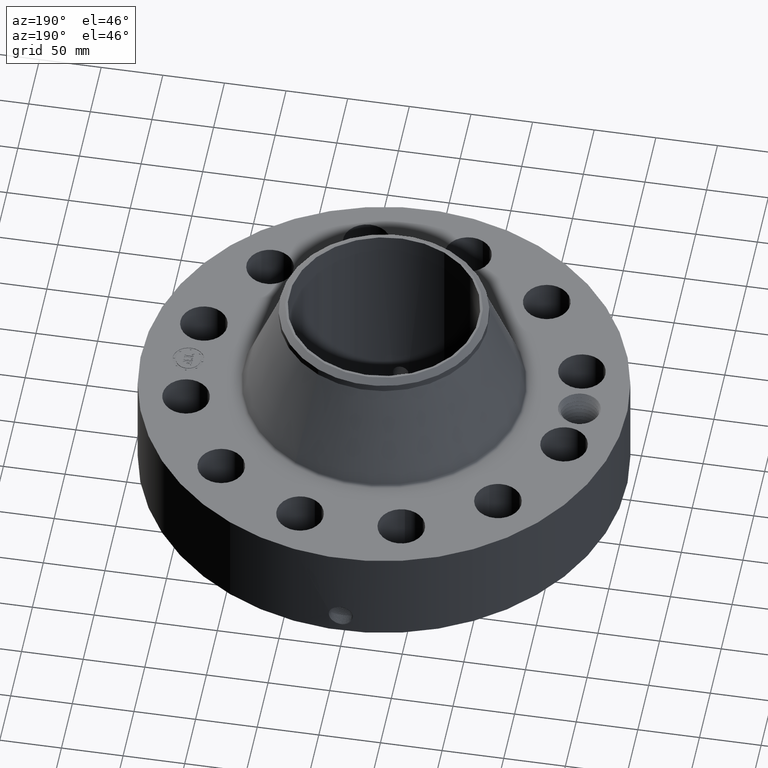
[diagram: clean part render]
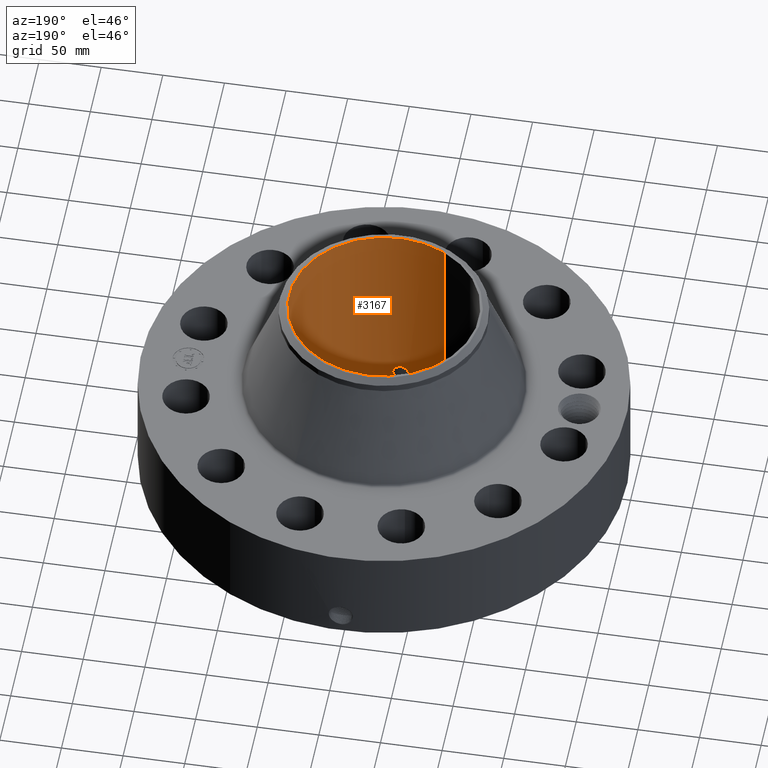
[diagram: same view with one face highlighted and labeled with its STEP entity id]
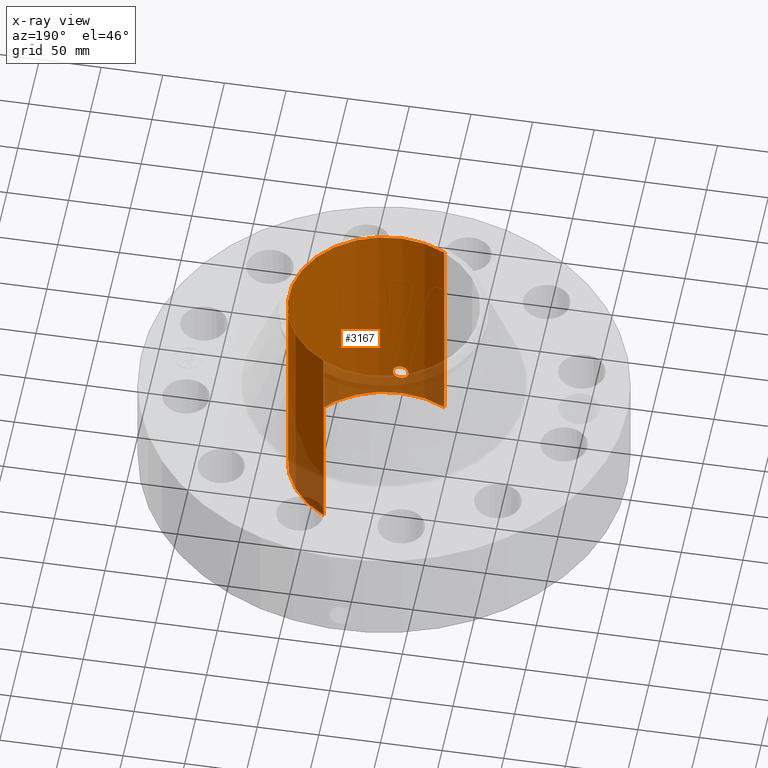
[diagram: x-ray of the same camera — body ghosted, the highlighted face saturated]
A machine part, auxiliary view. The second image highlights one B-rep face of the part: STEP entity #3167.
The next image is the same camera in x-ray: the body ghosted, the highlighted face saturated — about 19% of this face is hidden behind the body in this view.
In plain terms, the highlighted cylindrical surface (partial cylindrical patch) has radius 77.0255 mm, axis along (0, 0, -1).
Its self-contained STEP definition (entity closure, byte-faithful):
#2355=AXIS2_PLACEMENT_3D('Circle Axis2P3D',#2353,#2354,$) ;
#3098=AXIS2_PLACEMENT_3D('Cylinder Axis2P3D',#3095,#3096,#3097) ;
#3102=AXIS2_PLACEMENT_3D('Circle Axis2P3D',#3100,#3101,$) ;
#2353=CARTESIAN_POINT('Axis2P3D Location',(0.,0.,0.)) ;
#2357=CARTESIAN_POINT('Vertex',(1.45385794582,2.66126911894,-5.59482469102E-015)) ;
#2359=CARTESIAN_POINT('Vertex',(-1.45385794582,-2.66126911894,-5.59482469102E-015)) ;
#3095=CARTESIAN_POINT('Axis2P3D Location',(0.,0.,3.50000000001)) ;
#3100=CARTESIAN_POINT('Axis2P3D Location',(0.,0.,7.00000000003)) ;
#3104=CARTESIAN_POINT('Vertex',(1.45385794582,2.66126911894,7.00000000003)) ;
#3106=CARTESIAN_POINT('Vertex',(-1.45385794582,-2.66126911894,7.00000000003)) ;
#3109=CARTESIAN_POINT('Line Origine',(1.45385794582,2.66126911894,3.50000000001)) ;
#3114=CARTESIAN_POINT('Line Origine',(-1.45385794582,-2.66126911894,3.50000000001)) ;
#3126=CARTESIAN_POINT('Control Point',(0.219395640473,-3.02455315758,0.820143615352)) ;
#3127=CARTESIAN_POINT('Control Point',(0.206922263255,-3.0254579539,0.797311251506)) ;
#3128=CARTESIAN_POINT('Control Point',(0.191481219761,-3.02651338018,0.776106121765)) ;
#3129=CARTESIAN_POINT('Control Point',(0.173352909292,-3.02763770348,0.75703840678)) ;
#3130=CARTESIAN_POINT('Control Point',(0.112190548416,-3.03088722865,0.707588933534)) ;
#3131=CARTESIAN_POINT('Control Point',(0.0350754877848,-3.03299839928,0.684048576682)) ;
#3132=CARTESIAN_POINT('Control Point',(-0.0194612464951,-3.0331580368,0.682387747524)) ;
#3133=CARTESIAN_POINT('Control Point',(-0.124017328629,-3.03084011998,0.707479192395)) ;
#3134=CARTESIAN_POINT('Control Point',(-0.203044538244,-3.02603181156,0.780275435354)) ;
#3135=CARTESIAN_POINT('Control Point',(-0.232052740198,-3.02365897928,0.826424542051)) ;
#3136=CARTESIAN_POINT('Control Point',(-0.255813742479,-3.02169783615,0.904606241822)) ;
#3137=CARTESIAN_POINT('Control Point',(-0.248329979719,-3.02231494673,0.98405916067)) ;
#3138=CARTESIAN_POINT('Control Point',(-0.242095077606,-3.02283692028,1.01069738357)) ;
#3139=CARTESIAN_POINT('Control Point',(-0.232344480057,-3.02361387207,1.03615369279)) ;
#3140=CARTESIAN_POINT('Control Point',(-0.219395640473,-3.02455315758,1.05985638466)) ;
#3141=CARTESIAN_POINT('Vertex',(0.219395640473,-3.02455315758,0.820143615352)) ;
#3143=CARTESIAN_POINT('Vertex',(-0.219395640473,-3.02455315758,1.05985638466)) ;
#3147=CARTESIAN_POINT('Control Point',(-0.219395640473,-3.02455315758,1.05985638466)) ;
#3148=CARTESIAN_POINT('Control Point',(-0.206922263257,-3.0254579539,1.0826887485)) ;
#3149=CARTESIAN_POINT('Control Point',(-0.191481219765,-3.02651338018,1.10389387824)) ;
#3150=CARTESIAN_POINT('Control Point',(-0.173352909288,-3.02763770348,1.12296159323)) ;
#3151=CARTESIAN_POINT('Control Point',(-0.112190548411,-3.03088722865,1.17241106648)) ;
#3152=CARTESIAN_POINT('Control Point',(-0.0350754877791,-3.03299839928,1.19595142333)) ;
#3153=CARTESIAN_POINT('Control Point',(0.0194612464833,-3.0331580368,1.19761225249)) ;
#3154=CARTESIAN_POINT('Control Point',(0.124017328631,-3.03084011998,1.17252080761)) ;
#3155=CARTESIAN_POINT('Control Point',(0.203044538255,-3.02603181156,1.09972456464)) ;
#3156=CARTESIAN_POINT('Control Point',(0.23205274019,-3.02365897928,1.05357545798)) ;
#3157=CARTESIAN_POINT('Control Point',(0.255813742482,-3.02169783614,0.975393758189)) ;
#3158=CARTESIAN_POINT('Control Point',(0.248329979718,-3.02231494673,0.895940839324)) ;
#3159=CARTESIAN_POINT('Control Point',(0.242095077611,-3.02283692028,0.869302616452)) ;
#3160=CARTESIAN_POINT('Control Point',(0.23234448006,-3.02361387207,0.843846307227)) ;
#3161=CARTESIAN_POINT('Control Point',(0.219395640473,-3.02455315758,0.820143615352)) ;
#2354=DIRECTION('Axis2P3D Direction',(0.,0.,-0.0393700787402)) ;
#3096=DIRECTION('Axis2P3D Direction',(0.,0.,-0.0393700787402)) ;
#3097=DIRECTION('Axis2P3D XDirection',(-0.0188750212049,-0.0345504945626,0.)) ;
#3101=DIRECTION('Axis2P3D Direction',(0.,0.,-0.0393700787402)) ;
#3110=DIRECTION('Vector Direction',(0.,0.,-0.0393700787402)) ;
#3115=DIRECTION('Vector Direction',(0.,0.,-0.0393700787402)) ;
#3111=VECTOR('Line Direction',#3110,0.0393700787402) ;
#3116=VECTOR('Line Direction',#3115,0.0393700787402) ;
#3120=ORIENTED_EDGE('',*,*,#3108,.F.) ;
#3121=ORIENTED_EDGE('',*,*,#3113,.T.) ;
#3122=ORIENTED_EDGE('',*,*,#2361,.T.) ;
#3123=ORIENTED_EDGE('',*,*,#3118,.F.) ;
#3164=ORIENTED_EDGE('',*,*,#3145,.F.) ;
#3165=ORIENTED_EDGE('',*,*,#3162,.F.) ;
#3166=FACE_BOUND('',#3163,.T.) ;
#3167=ADVANCED_FACE('PartBody',(#3124,#3166),#3099,.F.) ;
#3125=B_SPLINE_CURVE_WITH_KNOTS('',5,(#3126,#3127,#3128,#3129,#3130,#3131,#3132,#3133,#3134,#3135,#3136,#3137,#3138,#3139,#3140),.UNSPECIFIED.,.F.,.U.,(6,3,3,3,6),(0.,4.67567238209,14.0201641478,23.3700567045,28.2239571808),.UNSPECIFIED.) ;
#3146=B_SPLINE_CURVE_WITH_KNOTS('',5,(#3147,#3148,#3149,#3150,#3151,#3152,#3153,#3154,#3155,#3156,#3157,#3158,#3159,#3160,#3161),.UNSPECIFIED.,.F.,.U.,(6,3,3,3,6),(0.,4.67567238136,14.0201641478,23.3700567061,28.2239571838),.UNSPECIFIED.) ;
#2356=CIRCLE('generated circle',#2355,3.03250000001) ;
#3103=CIRCLE('generated circle',#3102,3.03250000001) ;
#3099=CYLINDRICAL_SURFACE('generated cylinder',#3098,3.03250000001) ;
#2361=EDGE_CURVE('',#2358,#2360,#2356,.T.) ;
#3108=EDGE_CURVE('',#3105,#3107,#3103,.T.) ;
#3113=EDGE_CURVE('',#3105,#2358,#3112,.T.) ;
#3118=EDGE_CURVE('',#3107,#2360,#3117,.T.) ;
#3145=EDGE_CURVE('',#3142,#3144,#3125,.T.) ;
#3162=EDGE_CURVE('',#3144,#3142,#3146,.T.) ;
#3119=EDGE_LOOP('',(#3120,#3121,#3122,#3123)) ;
#3163=EDGE_LOOP('',(#3164,#3165)) ;
#3124=FACE_OUTER_BOUND('',#3119,.T.) ;
#3112=LINE('Line',#3109,#3111) ;
#3117=LINE('Line',#3114,#3116) ;
#2358=VERTEX_POINT('',#2357) ;
#2360=VERTEX_POINT('',#2359) ;
#3105=VERTEX_POINT('',#3104) ;
#3107=VERTEX_POINT('',#3106) ;
#3142=VERTEX_POINT('',#3141) ;
#3144=VERTEX_POINT('',#3143) ;